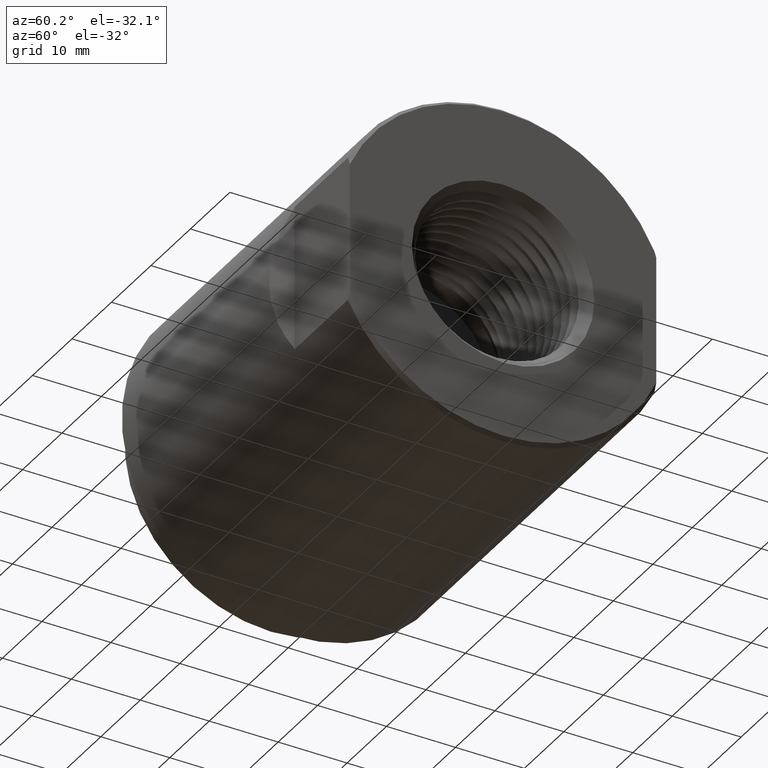
[diagram: clean part render]
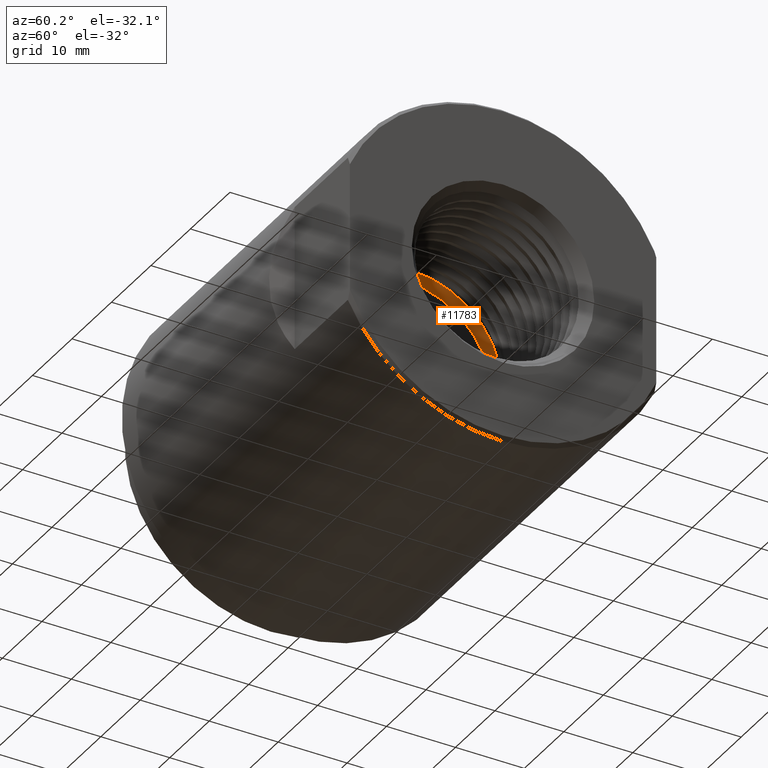
[diagram: same view with one face highlighted and labeled with its STEP entity id]
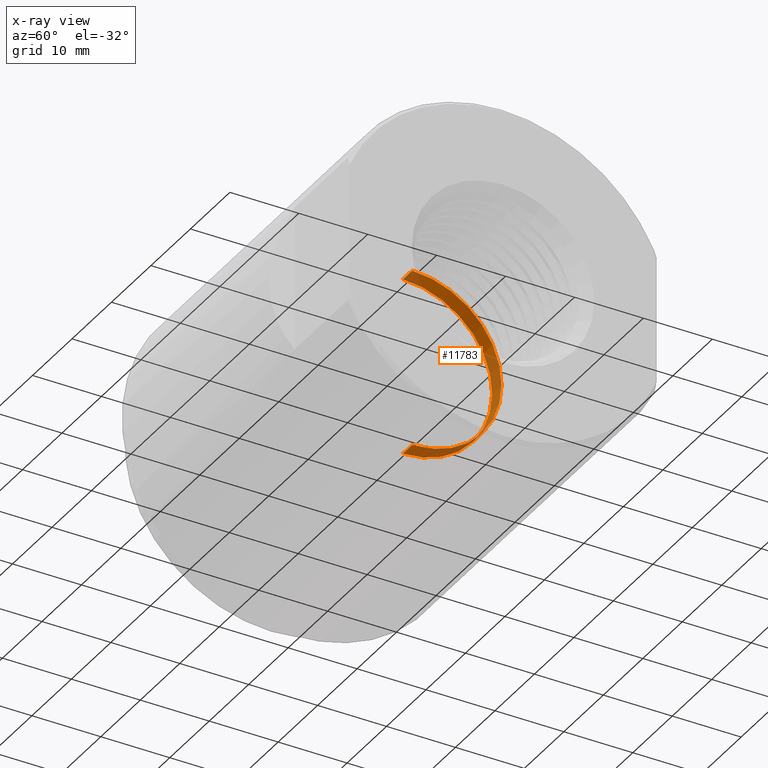
[diagram: x-ray of the same camera — body ghosted, the highlighted face saturated]
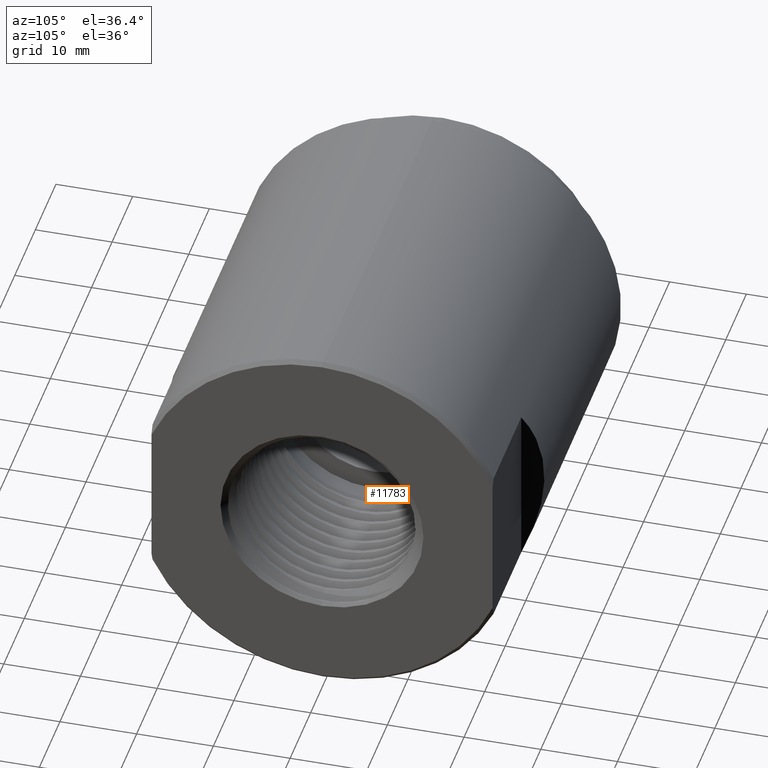
[diagram: same view with one face highlighted and labeled with its STEP entity id]
A machine part, auxiliary view. The second image highlights one B-rep face of the part: STEP entity #11783.
The next image is the same camera in x-ray: the body ghosted, the highlighted face saturated — about 50% of this face is hidden behind the body in this view.
A second angle (auxiliary view) of the same face is appended — the face is thin or edge-on in the first view.
In plain terms, the highlighted cylindrical surface (partial cylindrical patch) has radius 12.954 mm, axis along (-1, -0, -0).
Its self-contained STEP definition (entity closure, byte-faithful):
#164 = CIRCLE ( 'NONE', #1491, 0.5100000000000004530 ) ;
#188 = LINE ( 'NONE', #7465, #10125 ) ;
#525 = CARTESIAN_POINT ( 'NONE',  ( 0.7500000000000001110, 0.0000000000000000000, 0.0000000000000000000 ) ) ;
#1237 = CARTESIAN_POINT ( 'NONE',  ( 0.0000000000000000000, 0.0000000000000000000, 0.0000000000000000000 ) ) ;
#1439 = ORIENTED_EDGE ( 'NONE', *, *, #11459, .T. ) ;
#1491 = AXIS2_PLACEMENT_3D ( 'NONE', #11228, #1731, #5941 ) ;
#1731 = DIRECTION ( 'NONE',  ( -1.000000000000000000, -0.0000000000000000000, -0.0000000000000000000 ) ) ;
#1929 = AXIS2_PLACEMENT_3D ( 'NONE', #1237, #7682, #11849 ) ;
#2191 = DIRECTION ( 'NONE',  ( -1.000000000000000000, -0.0000000000000000000, -0.0000000000000000000 ) ) ;
#2349 = VERTEX_POINT ( 'NONE', #2555 ) ;
#2359 = AXIS2_PLACEMENT_3D ( 'NONE', #525, #5060, #2924 ) ;
#2555 = CARTESIAN_POINT ( 'NONE',  ( 0.7500000000000001110, 6.245698675651503551E-17, -0.5100000000000002309 ) ) ;
#2703 = VERTEX_POINT ( 'NONE', #10232 ) ;
#2924 = DIRECTION ( 'NONE',  ( 0.0000000000000000000, 0.0000000000000000000, 1.000000000000000000 ) ) ;
#3321 = CYLINDRICAL_SURFACE ( 'NONE', #1929, 0.5100000000000003419 ) ;
#3513 = CARTESIAN_POINT ( 'NONE',  ( 0.8440000000000000835, 6.245698675651507248E-17, -0.5100000000000004530 ) ) ;
#5060 = DIRECTION ( 'NONE',  ( -1.000000000000000000, -0.0000000000000000000, -0.0000000000000000000 ) ) ;
#5235 = ORIENTED_EDGE ( 'NONE', *, *, #11281, .T. ) ;
#5941 = DIRECTION ( 'NONE',  ( 0.0000000000000000000, 0.0000000000000000000, 1.000000000000000000 ) ) ;
#6624 = DIRECTION ( 'NONE',  ( -1.000000000000000000, -0.0000000000000000000, -0.0000000000000000000 ) ) ;
#6744 = VERTEX_POINT ( 'NONE', #12200 ) ;
#7198 = ORIENTED_EDGE ( 'NONE', *, *, #11207, .F. ) ;
#7465 = CARTESIAN_POINT ( 'NONE',  ( 0.0000000000000000000, 0.0000000000000000000, 0.5100000000000003419 ) ) ;
#7682 = DIRECTION ( 'NONE',  ( -1.000000000000000000, -0.0000000000000000000, -0.0000000000000000000 ) ) ;
#7818 = FACE_OUTER_BOUND ( 'NONE', #12179, .T. ) ;
#7901 = VECTOR ( 'NONE', #6624, 39.37007874015748143 ) ;
#9537 = LINE ( 'NONE', #10930, #7901 ) ;
#10125 = VECTOR ( 'NONE', #2191, 39.37007874015748143 ) ;
#10232 = CARTESIAN_POINT ( 'NONE',  ( 0.7500000000000001110, 0.0000000000000000000, 0.5100000000000002309 ) ) ;
#10764 = VERTEX_POINT ( 'NONE', #3513 ) ;
#10930 = CARTESIAN_POINT ( 'NONE',  ( 0.0000000000000000000, 6.245698675651504783E-17, -0.5100000000000003419 ) ) ;
#11207 = EDGE_CURVE ( 'NONE', #10764, #2349, #9537, .T. ) ;
#11228 = CARTESIAN_POINT ( 'NONE',  ( 0.8440000000000000835, 0.0000000000000000000, 0.0000000000000000000 ) ) ;
#11281 = EDGE_CURVE ( 'NONE', #6744, #2703, #188, .T. ) ;
#11459 = EDGE_CURVE ( 'NONE', #2703, #2349, #12986, .T. ) ;
#11783 = ADVANCED_FACE ( 'NONE', ( #7818 ), #3321, .F. ) ;
#11849 = DIRECTION ( 'NONE',  ( 0.0000000000000000000, 0.0000000000000000000, 1.000000000000000000 ) ) ;
#12179 = EDGE_LOOP ( 'NONE', ( #7198, #12801, #5235, #1439 ) ) ;
#12200 = CARTESIAN_POINT ( 'NONE',  ( 0.8440000000000000835, 0.0000000000000000000, 0.5100000000000004530 ) ) ;
#12801 = ORIENTED_EDGE ( 'NONE', *, *, #13122, .F. ) ;
#12986 = CIRCLE ( 'NONE', #2359, 0.5100000000000002309 ) ;
#13122 = EDGE_CURVE ( 'NONE', #6744, #10764, #164, .T. ) ;